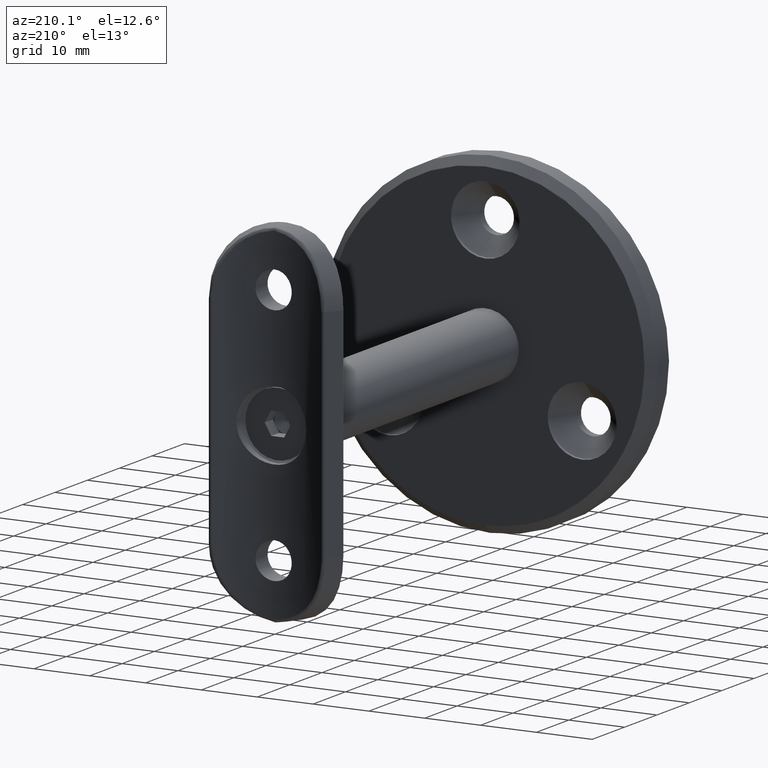
[diagram: clean part render]
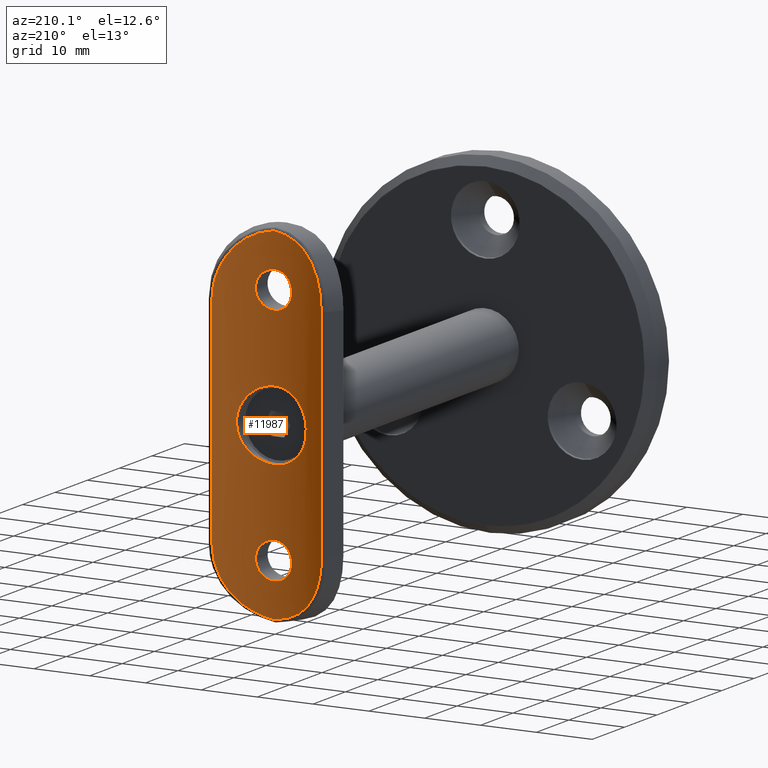
[diagram: same view with one face highlighted and labeled with its STEP entity id]
A machine part, auxiliary view. The second image highlights one B-rep face of the part: STEP entity #11987.
In plain terms, the highlighted cylindrical surface (partial cylindrical patch) has radius 21.2 mm, axis along (0, 0, 1).
Its self-contained STEP definition (entity closure, byte-faithful):
#31 = CARTESIAN_POINT ( 'NONE',  ( 3.145545920331509482, 0.2346159339094304741, -22.34487656152161605 ) ) ;
#66 = CARTESIAN_POINT ( 'NONE',  ( 5.614239911192782984, 0.7562560361792551866, -2.776362506403472707 ) ) ;
#86 = CARTESIAN_POINT ( 'NONE',  ( 3.145907283640576146, 0.2346707339384859758, -20.65680654937358440 ) ) ;
#96 = CARTESIAN_POINT ( 'NONE',  ( 2.819839704047508722, 0.1880380726274922532, 19.87035124118170870 ) ) ;
#165 = CARTESIAN_POINT ( 'NONE',  ( -1.987048177762577250, 0.09257353735406809170, 24.08067904902006262 ) ) ;
#200 = CARTESIAN_POINT ( 'NONE',  ( -6.039301808927667992, 0.8783182993483177325, -1.622293331917181503 ) ) ;
#232 = CARTESIAN_POINT ( 'NONE',  ( 0.2135048230366506095, 1.258701805919996194E-05, 18.25008210609304982 ) ) ;
#260 = CARTESIAN_POINT ( 'NONE',  ( -7.961314996402646393, 1.550569222153683979, -26.06667105966465670 ) ) ;
#261 = CARTESIAN_POINT ( 'NONE',  ( -5.418342615258408657, 0.7027876682133592512, 3.141403287028118552 ) ) ;
#263 = CARTESIAN_POINT ( 'NONE',  ( -9.498101785892211879, 2.246516363973416919, 22.26151695138473841 ) ) ;
#309 = CARTESIAN_POINT ( 'NONE',  ( -0.3496111230705142292, -2.191697751020502127E-16, -30.85369533552988131 ) ) ;
#310 = CARTESIAN_POINT ( 'NONE',  ( -6.168043762102301208, 0.9170762160689340803, 1.029291115725355032 ) ) ;
#311 = CARTESIAN_POINT ( 'NONE',  ( -7.961314996402649946, 1.550569222153686200, 26.06667105966465314 ) ) ;
#336 = CARTESIAN_POINT ( 'NONE',  ( -0.2150499108967895978, -2.731681254895124140E-17, 24.75000000000000000 ) ) ;
#340 = ORIENTED_EDGE ( 'NONE', *, *, #15476, .T. ) ;
#367 = CARTESIAN_POINT ( 'NONE',  ( 5.929858588863079483, 0.8455499187586685839, 2.017023791628234974 ) ) ;
#427 = CARTESIAN_POINT ( 'NONE',  ( -5.173748335101561402, 0.6336291749133582396, -29.01565426583593776 ) ) ;
#428 = CARTESIAN_POINT ( 'NONE',  ( 0.8222993865498399169, 0.01496025105131021035, 6.199095712120989532 ) ) ;
#622 = CARTESIAN_POINT ( 'NONE',  ( 9.786144100064895213, 2.393847186285935624, -19.50000000000000355 ) ) ;
#1017 = VERTEX_POINT ( 'NONE', #10471 ) ;
#1169 = CARTESIAN_POINT ( 'NONE',  ( 3.249878801187869204, 0.2505778649504845079, 21.71414448128088992 ) ) ;
#1193 = VERTEX_POINT ( 'NONE', #8116 ) ;
#1236 = CARTESIAN_POINT ( 'NONE',  ( 3.082978690918154907, 0.2252067195362402741, 22.55001038564953930 ) ) ;
#1241 = CARTESIAN_POINT ( 'NONE',  ( 4.588654109999668940, 0.4932363685647381812, -29.39409139998909026 ) ) ;
#1280 = CARTESIAN_POINT ( 'NONE',  ( 2.921457232206359222, 0.2020985129469241581, -20.06020391523707147 ) ) ;
#1286 = CARTESIAN_POINT ( 'NONE',  ( 1.048768862925172796, 0.02504141971366054265, 18.41651341461582447 ) ) ;
#1297 = ORIENTED_EDGE ( 'NONE', *, *, #5847, .T. ) ;
#1316 = CARTESIAN_POINT ( 'NONE',  ( 2.779446063824879687, 0.1795486602694901790, -5.612910073426257362 ) ) ;
#1317 = AXIS2_PLACEMENT_3D ( 'NONE', #13784, #4791, #14165 ) ;
#1336 = VERTEX_POINT ( 'NONE', #16317 ) ;
#1338 = CARTESIAN_POINT ( 'NONE',  ( 0.4264434180833558963, 0.003268988495222476757, -24.72886645516785720 ) ) ;
#1346 = CARTESIAN_POINT ( 'NONE',  ( 7.369745280326813308, 1.320855561925737609, 26.90753331144377825 ) ) ;
#1377 = CARTESIAN_POINT ( 'NONE',  ( 3.811200534816034491, 0.3447709507075331081, -4.957723033748282937 ) ) ;
#1397 = CARTESIAN_POINT ( 'NONE',  ( 3.229158249383773160, 0.2473313113571313226, -21.92522057988707829 ) ) ;
#1403 = CARTESIAN_POINT ( 'NONE',  ( 2.450216287825432993, 0.1415189953340932061, 19.35412267854471580 ) ) ;
#1434 = CARTESIAN_POINT ( 'NONE',  ( 5.421713914954439772, 0.7036460286707075795, -3.136250887450265257 ) ) ;
#1449 = CARTESIAN_POINT ( 'NONE',  ( 2.147498635732048911, 0.1084985908890578055, -19.05120459299063285 ) ) ;
#1455 = CARTESIAN_POINT ( 'NONE',  ( -1.047135578693866531, 0.02496962545759051980, 18.41603597569791617 ) ) ;
#1458 = CARTESIAN_POINT ( 'NONE',  ( 9.235871313527336923, 2.117188387548915252, -23.27048624469876259 ) ) ;
#1476 = CARTESIAN_POINT ( 'NONE',  ( -3.647338249130432253, 0.3154015837076459272, -5.079472761557564553 ) ) ;
#1489 = CARTESIAN_POINT ( 'NONE',  ( 3.082978690918154907, 0.2252067195362402741, -22.55001038564953930 ) ) ;
#1497 = CARTESIAN_POINT ( 'NONE',  ( -1.052750469737839367, 0.02525014802992522900, 24.58204548047347160 ) ) ;
#1543 = CARTESIAN_POINT ( 'NONE',  ( -2.586182703388970161, 0.1579996132313327140, -23.47972158452783376 ) ) ;
#1548 = CARTESIAN_POINT ( 'NONE',  ( -1.631629457461086341, 0.06212882879875767511, 24.31887391139545329 ) ) ;
#1583 = CARTESIAN_POINT ( 'NONE',  ( -5.079922859556514680, 0.6172907211265470373, 3.646638392818005059 ) ) ;
#1586 = CARTESIAN_POINT ( 'NONE',  ( -6.716344212987915618, 1.086700003243231460, 27.69146406474421696 ) ) ;
#1651 = CARTESIAN_POINT ( 'NONE',  ( -9.333094242841385224, 2.164721401289204206, -22.93476984843744759 ) ) ;
#1653 = CARTESIAN_POINT ( 'NONE',  ( 3.817888132544002389, 0.3438054985029085353, 4.965018884724328174 ) ) ;
#1672 = CARTESIAN_POINT ( 'NONE',  ( -2.821907254063746873, 0.1883137111381886775, -23.12618509924797294 ) ) ;
#1679 = CARTESIAN_POINT ( 'NONE',  ( -3.228460125727636854, 0.2472242654131561745, 21.07053707394223352 ) ) ;
#1703 = CARTESIAN_POINT ( 'NONE',  ( -9.498101785892202997, 2.246516363973413366, -22.26151695138474906 ) ) ;
#1705 = CARTESIAN_POINT ( 'NONE',  ( -5.919265578215368251, 0.8430304687442954359, -2.016754077386383237 ) ) ;
#2048 = EDGE_CURVE ( 'NONE', #4216, #1336, #9803, .T. ) ;
#2460 = CARTESIAN_POINT ( 'NONE',  ( 5.173748335101564955, 0.6336291749133607931, 29.01565426583592355 ) ) ;
#2489 = CARTESIAN_POINT ( 'NONE',  ( 9.786144100064895213, 2.393847186285949391, 19.50000000000000000 ) ) ;
#2517 = CARTESIAN_POINT ( 'NONE',  ( 3.145545920331509482, 0.2346159339094304741, 22.34487656152161605 ) ) ;
#2520 = CARTESIAN_POINT ( 'NONE',  ( 7.961314996402649946, 1.550569222153687310, -26.06667105966465314 ) ) ;
#2570 = CARTESIAN_POINT ( 'NONE',  ( -0.2109978030792270254, -1.251290075008408544E-05, -18.24991837737998068 ) ) ;
#2615 = CARTESIAN_POINT ( 'NONE',  ( 3.645808770947284394, 0.3151353198254496779, -5.080564660467373983 ) ) ;
#2639 = CARTESIAN_POINT ( 'NONE',  ( -3.250179184896289097, 0.2506244651691644787, -21.71207803581957307 ) ) ;
#2651 = CARTESIAN_POINT ( 'NONE',  ( 3.368459319491573734, 0.2601029505329920388, 30.02156205634348041 ) ) ;
#2655 = CARTESIAN_POINT ( 'NONE',  ( 5.173748335101573836, 0.6336291749133586837, -29.01565426583594132 ) ) ;
#2699 = CARTESIAN_POINT ( 'NONE',  ( 1.048768862925172796, 0.02504141971366054265, -18.41651341461582447 ) ) ;
#2707 = CARTESIAN_POINT ( 'NONE',  ( -2.818946742385630255, 0.1879160771953727604, 19.86874660788533831 ) ) ;
#2725 = EDGE_LOOP ( 'NONE', ( #6186 ) ) ;
#2738 = CARTESIAN_POINT ( 'NONE',  ( 1.424849074835204288, 0.04698282416929040750, -6.088850896372997923 ) ) ;
#2740 = CARTESIAN_POINT ( 'NONE',  ( -1.383814501144068343, 0.04241292802571689641, 30.65758117817205175 ) ) ;
#2758 = CARTESIAN_POINT ( 'NONE',  ( 1.983721702801612308, 0.09227673062904838408, -18.91695813430423101 ) ) ;
#2774 = CARTESIAN_POINT ( 'NONE',  ( 6.234549295242552525, 0.9299808624872809570, -28.16517789940062855 ) ) ;
#2804 = CARTESIAN_POINT ( 'NONE',  ( -2.781056929607645500, 0.1797819903685602960, -5.612029590905950549 ) ) ;
#2807 = CARTESIAN_POINT ( 'NONE',  ( -7.576938533877998871, 1.399175047004874051, 26.63232691431729293 ) ) ;
#2823 = CARTESIAN_POINT ( 'NONE',  ( -1.627814602934460231, 0.06183765153734042258, -18.67896950773687692 ) ) ;
#2865 = CARTESIAN_POINT ( 'NONE',  ( -0.6963605954796110442, 0.008645272120679704797, -30.79787574279941964 ) ) ;
#2866 = CARTESIAN_POINT ( 'NONE',  ( -3.138961909374041959, 0.2308669146253447824, 5.419888535949556108 ) ) ;
#2871 = CARTESIAN_POINT ( 'NONE',  ( -5.173748335101571172, 0.6336291749133606821, 29.01565426583593421 ) ) ;
#2912 = CARTESIAN_POINT ( 'NONE',  ( -2.019498987587631245, 0.09300041362134316147, 5.928790806727266549 ) ) ;
#2936 = CARTESIAN_POINT ( 'NONE',  ( -2.583132212986963161, 0.1576246710210893187, 19.51634772807298290 ) ) ;
#2964 = CARTESIAN_POINT ( 'NONE',  ( -9.566484978522471039, 2.281063973388749666, -21.92232553221905533 ) ) ;
#2966 = CARTESIAN_POINT ( 'NONE',  ( -1.628583440951780092, 0.05873803291983131086, 6.048261108094442839 ) ) ;
#3023 = CARTESIAN_POINT ( 'NONE',  ( -9.730737802063439190, 2.364718140661839829, -20.89720366981351418 ) ) ;
#3027 = CARTESIAN_POINT ( 'NONE',  ( 0.2073184500589395352, 2.579505847719572114E-05, 6.249912503154438248 ) ) ;
#3107 = CARTESIAN_POINT ( 'NONE',  ( -1.443554947874321259, 0.04829879282738373109, -24.41949259422040441 ) ) ;
#3127 = EDGE_CURVE ( 'NONE', #13432, #13432, #14274, .T. ) ;
#3145 = LINE ( 'NONE', #16788, #10884 ) ;
#3729 = CARTESIAN_POINT ( 'NONE',  ( 9.235871313527335147, 2.117188387548913919, 23.27048624469875548 ) ) ;
#3787 = CARTESIAN_POINT ( 'NONE',  ( 9.730737802063440967, 2.364718140661844714, 20.89720366981351418 ) ) ;
#3843 = CARTESIAN_POINT ( 'NONE',  ( 4.588654109999660058, 0.4932363685647397911, 29.39409139998909382 ) ) ;
#3897 = CARTESIAN_POINT ( 'NONE',  ( 1.441976982013438047, 0.04817999821228525353, -18.57963905767987711 ) ) ;
#3904 = CARTESIAN_POINT ( 'NONE',  ( 9.786144100064895213, 2.393847186285949391, 19.50000000000000000 ) ) ;
#3923 = B_SPLINE_CURVE_WITH_KNOTS ( 'NONE', 3,
 ( #5196, #15423, #14307, #10291, #16715, #10354, #2651, #3843, #2460, #11598, #11777, #1346, #13008, #7766, #7637, #7886, #3956, #3729, #6487, #10417, #14257, #3787, #10530, #3904 ),
 .UNSPECIFIED., .F., .F.,
 ( 4, 2, 2, 2, 2, 2, 2, 2, 2, 2, 2, 4 ),
 ( 0.000000000000000000, 0.001053485587485952736, 0.002106971174971905472, 0.004213942349943812678, 0.006320913524915718583, 0.008427884699887623621, 0.009481370287373573971, 0.01053485587485952259, 0.01264182704983141808, 0.01369531263731736670, 0.01474879822480331358, 0.01685576939977520908 ),
 .UNSPECIFIED. ) ;
#3930 = CARTESIAN_POINT ( 'NONE',  ( 4.126940293863242459, 0.4049478955708706862, -4.698151871409463887 ) ) ;
#3949 = CARTESIAN_POINT ( 'NONE',  ( 0.8422358293998256640, 0.01571576921726273307, -24.64612005203395384 ) ) ;
#3956 = CARTESIAN_POINT ( 'NONE',  ( 8.904028815678783459, 1.958941227809775532, 24.25532854542014150 ) ) ;
#3992 = CARTESIAN_POINT ( 'NONE',  ( 3.252606517456513302E-16, -3.858705648602913067E-18, -6.250000000000000000 ) ) ;
#4016 = CARTESIAN_POINT ( 'NONE',  ( -1.355252715606880543E-17, 6.470390569303776767E-19, 24.75000000000000000 ) ) ;
#4034 = ORIENTED_EDGE ( 'NONE', *, *, #4093, .T. ) ;
#4050 = CARTESIAN_POINT ( 'NONE',  ( -3.796375941170285717E-15, 0.000000000000000000, 30.89612722721090776 ) ) ;
#4068 = CARTESIAN_POINT ( 'NONE',  ( -0.8423241288772215229, 0.01569777600590175834, -18.35375505035547050 ) ) ;
#4093 = EDGE_CURVE ( 'NONE', #14385, #4216, #12031, .T. ) ;
#4104 = CARTESIAN_POINT ( 'NONE',  ( -4.700046672115660407, 0.5271378593229989473, 4.124758911762493874 ) ) ;
#4120 = CARTESIAN_POINT ( 'NONE',  ( -2.445886756578096399, 0.1410260412209410064, -19.34941560476179845 ) ) ;
#4216 = VERTEX_POINT ( 'NONE', #15662 ) ;
#4219 = CARTESIAN_POINT ( 'NONE',  ( -0.4153841167000001389, -5.590417451878381005E-17, -6.250000000000000000 ) ) ;
#4247 = CARTESIAN_POINT ( 'NONE',  ( 0.4291155959866740921, 0.003316562383963741339, 18.27144141373703690 ) ) ;
#4281 = CARTESIAN_POINT ( 'NONE',  ( 0.4121785730507745993, 0.003014500416007555913, 6.239797492953990776 ) ) ;
#4340 = CARTESIAN_POINT ( 'NONE',  ( -3.812893025349349152, 0.3450818636665604067, -4.956412987034431339 ) ) ;
#4357 = CARTESIAN_POINT ( 'NONE',  ( -3.084331617472057641, 0.2254044745776028202, -22.54627208264579963 ) ) ;
#4410 = CARTESIAN_POINT ( 'NONE',  ( -0.4275380518344815695, 0.003270632450816766176, -24.72886359071462792 ) ) ;
#4652 = FACE_BOUND ( 'NONE', #8873, .T. ) ;
#4739 = DIRECTION ( 'NONE',  ( -0.000000000000000000, -0.000000000000000000, 1.000000000000000000 ) ) ;
#4791 = DIRECTION ( 'NONE',  ( 0.000000000000000000, 0.000000000000000000, -1.000000000000000000 ) ) ;
#5025 = CARTESIAN_POINT ( 'NONE',  ( 1.983721702801612308, 0.09227673062904838408, 18.91695813430423101 ) ) ;
#5144 = CARTESIAN_POINT ( 'NONE',  ( 3.084468863350044554, 0.2254241747152201381, 20.45406646657944449 ) ) ;
#5148 = CARTESIAN_POINT ( 'NONE',  ( 6.716344212987907625, 1.086700003243234125, -27.69146406474421340 ) ) ;
#5187 = CARTESIAN_POINT ( 'NONE',  ( -2.918967894088988491, 0.2017509110877075684, -20.05515662026936496 ) ) ;
#5196 = CARTESIAN_POINT ( 'NONE',  ( -3.796375941170285717E-15, 0.000000000000000000, 30.89612722721090776 ) ) ;
#5236 = ORIENTED_EDGE ( 'NONE', *, *, #8417, .T. ) ;
#5253 = CARTESIAN_POINT ( 'NONE',  ( 2.448021508383576794, 0.1412761474275376905, -23.64813597836817749 ) ) ;
#5263 = CARTESIAN_POINT ( 'NONE',  ( 0.8422358293998256640, 0.01571576921726273307, 24.64612005203395384 ) ) ;
#5268 = CARTESIAN_POINT ( 'NONE',  ( 0.3496111230705337136, 2.024408743937770168E-16, -30.85369533552986354 ) ) ;
#5293 = CARTESIAN_POINT ( 'NONE',  ( 6.037489438090903882, 0.8777801580022847050, -1.628895278877126485 ) ) ;
#5349 = CARTESIAN_POINT ( 'NONE',  ( 6.249725049153894929, 0.9421388865473353524, -0.4143435962915436033 ) ) ;
#5397 = CARTESIAN_POINT ( 'NONE',  ( -2.728825075595699090, 0.1656264627807208789, -30.27558004452008333 ) ) ;
#5398 = CARTESIAN_POINT ( 'NONE',  ( -1.628331638382394475, 0.05878972328452738982, -6.048074268472876547 ) ) ;
#5402 = CARTESIAN_POINT ( 'NONE',  ( -0.6963605954796248110, 0.008645272120680560016, 30.79787574279942319 ) ) ;
#5427 = CARTESIAN_POINT ( 'NONE',  ( -3.145373074388929435, 0.2345905360707609966, 20.65500212356448628 ) ) ;
#5456 = CARTESIAN_POINT ( 'NONE',  ( 1.064693553844775546E-14, 0.000000000000000000, -30.89612722721090776 ) ) ;
#5458 = CARTESIAN_POINT ( 'NONE',  ( 5.693306450056792478, 0.7786147160836194292, 2.586704202400924579 ) ) ;
#5463 = CARTESIAN_POINT ( 'NONE',  ( -9.786144100064898765, 2.393847186285949835, 20.20379068883977780 ) ) ;
#5495 = CARTESIAN_POINT ( 'NONE',  ( -0.4275380518344815695, 0.003270632450816766176, 24.72886359071462792 ) ) ;
#5523 = CARTESIAN_POINT ( 'NONE',  ( 5.411934874550039076, 0.7021725669869868236, 3.132905830933767177 ) ) ;
#5540 = CARTESIAN_POINT ( 'NONE',  ( -0.2150499108967895978, -2.731681254895124140E-17, -24.75000000000000000 ) ) ;
#5570 = CARTESIAN_POINT ( 'NONE',  ( 5.604762028757866332, 0.7540563641355548796, 2.773225672905788031 ) ) ;
#5589 = CARTESIAN_POINT ( 'NONE',  ( -1.631629457461086341, 0.06212882879875767511, -24.31887391139545329 ) ) ;
#5628 = CARTESIAN_POINT ( 'NONE',  ( 3.142721505544152638, 0.2314420997654646206, 5.417654829986845222 ) ) ;
#5650 = CARTESIAN_POINT ( 'NONE',  ( -1.987048177762577250, 0.09257353735406809170, -24.08067904902006262 ) ) ;
#5847 = EDGE_CURVE ( 'NONE', #15340, #13370, #3145, .T. ) ;
#5971 = CARTESIAN_POINT ( 'NONE',  ( -9.786144100064898765, 2.393847186285935624, 31.50000000000000000 ) ) ;
#6008 = DIRECTION ( 'NONE',  ( 0.000000000000000000, 0.000000000000000000, -1.000000000000000000 ) ) ;
#6186 = ORIENTED_EDGE ( 'NONE', *, *, #7535, .F. ) ;
#6281 = VECTOR ( 'NONE', #4739, 1000.000000000000000 ) ;
#6317 = CARTESIAN_POINT ( 'NONE',  ( 1.632114013627158577, 0.06218229672154847870, 18.68158538880010866 ) ) ;
#6398 = CARTESIAN_POINT ( 'NONE',  ( 1.623571473302697576, 0.06133674405567200033, -6.038947878889749710 ) ) ;
#6418 = CARTESIAN_POINT ( 'NONE',  ( 2.820025938915971420, 0.1880558028966971829, -23.12960000525240645 ) ) ;
#6428 = CARTESIAN_POINT ( 'NONE',  ( 2.921457232206359222, 0.2020985129469241581, 20.06020391523707147 ) ) ;
#6478 = CARTESIAN_POINT ( 'NONE',  ( -3.249818524630297301, 0.2505685139125645722, -21.28246521156387061 ) ) ;
#6487 = CARTESIAN_POINT ( 'NONE',  ( 9.333094242841394106, 2.164721401289207758, 22.93476984843744404 ) ) ;
#6530 = CARTESIAN_POINT ( 'NONE',  ( 2.920790955711715764, 0.2020074540475240432, -22.94092318034653744 ) ) ;
#6535 = CARTESIAN_POINT ( 'NONE',  ( 3.229158249383773160, 0.2473313113571313226, 21.92522057988707829 ) ) ;
#6540 = CARTESIAN_POINT ( 'NONE',  ( 7.369745280326811532, 1.320855561925740718, -26.90753331144377469 ) ) ;
#6581 = CARTESIAN_POINT ( 'NONE',  ( -3.145373074388929435, 0.2345905360707609966, -20.65500212356448628 ) ) ;
#6591 = CARTESIAN_POINT ( 'NONE',  ( -2.445886756578096399, 0.1410260412209410064, 19.34941560476179845 ) ) ;
#6595 = CARTESIAN_POINT ( 'NONE',  ( 8.904028815678778130, 1.958941227809774643, -24.25532854542014150 ) ) ;
#6630 = CARTESIAN_POINT ( 'NONE',  ( -6.198521291053712190, 0.9264015604088318145, 0.8266439793733078023 ) ) ;
#6632 = CARTESIAN_POINT ( 'NONE',  ( -1.725848776065748380, 0.06769569826162523396, 30.57265922836107208 ) ) ;
#6693 = CARTESIAN_POINT ( 'NONE',  ( 3.252606517456513302E-16, -3.858705648602913067E-18, -6.250000000000000000 ) ) ;
#6723 = CARTESIAN_POINT ( 'NONE',  ( -2.821907254063746873, 0.1883137111381886775, 23.12618509924797294 ) ) ;
#6752 = CARTESIAN_POINT ( 'NONE',  ( -7.369745280326807979, 1.320855561925737831, -26.90753331144376759 ) ) ;
#6753 = CARTESIAN_POINT ( 'NONE',  ( 4.130900364371705713, 0.4042628310373265754, 4.707934048289297735 ) ) ;
#6775 = CARTESIAN_POINT ( 'NONE',  ( -2.150385480687886375, 0.1088062235640963188, 23.94603853267264881 ) ) ;
#6796 = CARTESIAN_POINT ( 'NONE',  ( -8.138925242327928800, 1.623748329729958195, -25.77605957762513356 ) ) ;
#6797 = CARTESIAN_POINT ( 'NONE',  ( 2.023361902274226409, 0.09337216526201196076, 5.927473218269418531 ) ) ;
#6860 = CARTESIAN_POINT ( 'NONE',  ( 1.064693553844775546E-14, 0.000000000000000000, -30.89612722721090776 ) ) ;
#6862 = CARTESIAN_POINT ( 'NONE',  ( -6.239524233404180720, 0.9389833121286422779, 0.4163457758189879621 ) ) ;
#6925 = CARTESIAN_POINT ( 'NONE',  ( -9.786144100064898765, 2.393847186285949391, -19.50000000000000000 ) ) ;
#6944 = CARTESIAN_POINT ( 'NONE',  ( -2.150385480687886375, 0.1088062235640963188, -23.94603853267264881 ) ) ;
#7084 = B_SPLINE_CURVE_WITH_KNOTS ( 'NONE', 3,
 ( #13115, #11781, #12948, #16837, #8002, #10534, #1458, #6595, #10474, #10591, #2520, #7890, #6540, #5148, #2774, #2655, #1241, #9159, #11714, #10359, #13013, #11664, #5268, #9218 ),
 .UNSPECIFIED., .F., .F.,
 ( 4, 2, 2, 2, 2, 2, 2, 2, 2, 2, 2, 4 ),
 ( 0.000000000000000000, 0.002082930985801093298, 0.003124396478701641031, 0.004165861971602188331, 0.006248792957403284665, 0.007290258450303832398, 0.008331723943204380131, 0.01041465492900546692, 0.01249758591480655025, 0.01458051690060763531, 0.01562198239350817870, 0.01666344788640872210 ),
 .UNSPECIFIED. ) ;
#7278 = ORIENTED_EDGE ( 'NONE', *, *, #2048, .T. ) ;
#7511 = EDGE_CURVE ( 'NONE', #1017, #15340, #3923, .T. ) ;
#7535 = EDGE_CURVE ( 'NONE', #14024, #14024, #13321, .T. ) ;
#7637 = CARTESIAN_POINT ( 'NONE',  ( 8.138925242327928800, 1.623748329729961526, 25.77605957762512645 ) ) ;
#7759 = CARTESIAN_POINT ( 'NONE',  ( 3.084468863350044554, 0.2254241747152201381, -20.45406646657944449 ) ) ;
#7766 = CARTESIAN_POINT ( 'NONE',  ( 7.961314996402642841, 1.550569222153686200, 26.06667105966464959 ) ) ;
#7810 = CARTESIAN_POINT ( 'NONE',  ( 0.2150499108967887929, 2.861089066281190065E-17, -24.75000000000000355 ) ) ;
#7820 = CARTESIAN_POINT ( 'NONE',  ( 1.628785365800687224, 0.06191954441467142911, 24.32039406380675928 ) ) ;
#7875 = CARTESIAN_POINT ( 'NONE',  ( 3.228949414987504429, 0.2472997075057148109, -21.07386210225567780 ) ) ;
#7886 = CARTESIAN_POINT ( 'NONE',  ( 8.630651940699086921, 1.833049251099972743, 24.88160642046342019 ) ) ;
#7890 = CARTESIAN_POINT ( 'NONE',  ( 7.576938533877997983, 1.399175047004875161, -26.63232691431728938 ) ) ;
#7917 = CARTESIAN_POINT ( 'NONE',  ( 6.088342284034527374, 0.8930094056061508301, -1.427235600438272245 ) ) ;
#7975 = CARTESIAN_POINT ( 'NONE',  ( -5.615371060258129710, 0.7565649993771517146, -2.774231810149235589 ) ) ;
#7991 = CARTESIAN_POINT ( 'NONE',  ( 1.442239263721961873, 0.04819686276429754196, -24.42024035302756957 ) ) ;
#7998 = CARTESIAN_POINT ( 'NONE',  ( -2.918967894088988491, 0.2017509110877075684, 20.05515662026936496 ) ) ;
#8002 = CARTESIAN_POINT ( 'NONE',  ( 9.498101785892204774, 2.246516363973415586, -22.26151695138473841 ) ) ;
#8021 = CARTESIAN_POINT ( 'NONE',  ( -4.128869264178624654, 0.4038601850098663126, 4.709693602582373018 ) ) ;
#8047 = CARTESIAN_POINT ( 'NONE',  ( -3.250179184896289097, 0.2506244651691644787, 21.71207803581957307 ) ) ;
#8078 = CARTESIAN_POINT ( 'NONE',  ( -3.815599846328837863, 0.3433746249938488537, 4.966837164968657348 ) ) ;
#8080 = CARTESIAN_POINT ( 'NONE',  ( -9.333094242841397659, 2.164721401289208647, 22.93476984843743693 ) ) ;
#8106 = CARTESIAN_POINT ( 'NONE',  ( -2.146023883358508133, 0.1083588188449987194, 19.05011086799810371 ) ) ;
#8116 = CARTESIAN_POINT ( 'NONE',  ( 0.000000000000000000, 0.000000000000000000, -6.250000000000000000 ) ) ;
#8135 = CARTESIAN_POINT ( 'NONE',  ( -8.904028815678779907, 1.958941227809772867, -24.25532854542014505 ) ) ;
#8137 = CARTESIAN_POINT ( 'NONE',  ( -4.966423312642175958, 0.5885908633273573276, -3.816548163265734317 ) ) ;
#8197 = CARTESIAN_POINT ( 'NONE',  ( -4.708117847964831348, 0.5273280253430013831, -4.130414004293347041 ) ) ;
#8249 = CARTESIAN_POINT ( 'NONE',  ( -7.576938533877994431, 1.399175047004871386, -26.63232691431729293 ) ) ;
#8417 = EDGE_CURVE ( 'NONE', #1193, #1193, #9969, .T. ) ;
#8873 = EDGE_LOOP ( 'NONE', ( #12192 ) ) ;
#9030 = CARTESIAN_POINT ( 'NONE',  ( 2.920790955711715764, 0.2020074540475240432, 22.94092318034653744 ) ) ;
#9079 = CARTESIAN_POINT ( 'NONE',  ( 1.048813183214363676, 0.02504259846289262972, -24.58347996912378974 ) ) ;
#9088 = CARTESIAN_POINT ( 'NONE',  ( 1.441976982013438047, 0.04817999821228525353, 18.57963905767987711 ) ) ;
#9122 = CARTESIAN_POINT ( 'NONE',  ( 2.017426682319550579, 0.09528350916321162711, -5.919025713268562860 ) ) ;
#9154 = CARTESIAN_POINT ( 'NONE',  ( 1.442239263721961873, 0.04819686276429754196, 24.42024035302756957 ) ) ;
#9159 = CARTESIAN_POINT ( 'NONE',  ( 3.368459319491586168, 0.2601029505329905400, -30.02156205634348041 ) ) ;
#9186 = CARTESIAN_POINT ( 'NONE',  ( 5.848568015681263610, 0.8225408496146877635, -2.213164431938652310 ) ) ;
#9207 = CARTESIAN_POINT ( 'NONE',  ( 1.632114013627158577, 0.06218229672154847870, -18.68158538880010866 ) ) ;
#9212 = CARTESIAN_POINT ( 'NONE',  ( 2.582435166560725914, 0.1575340359345586694, 23.48473451216730368 ) ) ;
#9218 = CARTESIAN_POINT ( 'NONE',  ( 1.064693553844775546E-14, 0.000000000000000000, -30.89612722721090776 ) ) ;
#9242 = CARTESIAN_POINT ( 'NONE',  ( 6.209466178652506940, 0.9295869590769786361, -0.8213907006140717115 ) ) ;
#9256 = CARTESIAN_POINT ( 'NONE',  ( 2.819839704047508722, 0.1880380726274922532, -19.87035124118170870 ) ) ;
#9263 = CARTESIAN_POINT ( 'NONE',  ( -3.082691481000266798, 0.2251614642759025564, 20.44882960865418653 ) ) ;
#9292 = CARTESIAN_POINT ( 'NONE',  ( -4.128233867710012106, 0.4052062085381769041, -4.697006286380012163 ) ) ;
#9295 = CARTESIAN_POINT ( 'NONE',  ( -8.630651940699086921, 1.833049251099971411, 24.88160642046341664 ) ) ;
#9311 = CARTESIAN_POINT ( 'NONE',  ( 0.4291155959866740921, 0.003316562383963741339, -18.27144141373703690 ) ) ;
#9319 = CARTESIAN_POINT ( 'NONE',  ( -3.146879315023289880, 0.2348172704072436223, 22.33941132614858560 ) ) ;
#9352 = CARTESIAN_POINT ( 'NONE',  ( -5.850004586780881866, 0.8229527893045350817, -2.209413927911600517 ) ) ;
#9356 = CARTESIAN_POINT ( 'NONE',  ( -6.234549295242551636, 0.9299808624872829554, 28.16517789940063565 ) ) ;
#9373 = CARTESIAN_POINT ( 'NONE',  ( -1.052750469737839367, 0.02525014802992522900, -24.58204548047347160 ) ) ;
#9382 = CARTESIAN_POINT ( 'NONE',  ( -2.449360428614453244, 0.1414329518492761784, 23.64660096655394028 ) ) ;
#9413 = CARTESIAN_POINT ( 'NONE',  ( -6.249934268010309601, 0.9422034354612639495, 0.2079996149894276780 ) ) ;
#9415 = CARTESIAN_POINT ( 'NONE',  ( -8.904028815678783459, 1.958941227809773755, 24.25532854542013439 ) ) ;
#9442 = CARTESIAN_POINT ( 'NONE',  ( -3.084331617472057641, 0.2254044745776028202, 22.54627208264579963 ) ) ;
#9465 = CARTESIAN_POINT ( 'NONE',  ( -9.235871313527335147, 2.117188387548912143, -23.27048624469875904 ) ) ;
#9467 = CARTESIAN_POINT ( 'NONE',  ( -2.773078085023259920, 0.1787287340984061723, 5.615957133487123443 ) ) ;
#9494 = CARTESIAN_POINT ( 'NONE',  ( -1.438401774077970652, 0.04794561704963987148, 18.57795835764009240 ) ) ;
#9520 = CARTESIAN_POINT ( 'NONE',  ( -6.234549295242542755, 0.9299808624872804019, -28.16517789940062855 ) ) ;
#9523 = CARTESIAN_POINT ( 'NONE',  ( -6.209910792216525977, 0.9297259159817782281, -0.8173020832162402050 ) ) ;
#9573 = CYLINDRICAL_SURFACE ( 'NONE', #1317, 21.20000000000000284 ) ;
#9587 = ORIENTED_EDGE ( 'NONE', *, *, #7511, .T. ) ;
#9803 = LINE ( 'NONE', #5971, #6281 ) ;
#9969 = B_SPLINE_CURVE_WITH_KNOTS ( 'NONE', 3,
 ( #3992, #14282, #10387, #2738, #6398, #9122, #15505, #1316, #10448, #2615, #1377, #3930, #11745, #13041, #15626, #1434, #66, #9186, #10501, #5293, #7917, #9242, #5349, #10562, #11868, #13146, #367, #5458, #5570, #5523, #14558, #12092, #13208, #13449, #10672, #6753, #1653, #5628, #10785, #6797, #15802, #12038, #428, #4281, #3027, #13385, #15862, #2966, #2912, #9467, #2866, #8078, #8021, #10845, #4104, #15912, #1583, #261, #11975, #14612, #14671, #310, #6630, #6862, #9413, #15735, #9523, #10725, #200, #1705, #9352, #7975, #15958, #8137, #8197, #12147, #9292, #4340, #1476, #10622, #2804, #11918, #5398, #14510, #4219, #6693 ),
 .UNSPECIFIED., .T., .F.,
 ( 4, 2, 2, 2, 2, 2, 2, 2, 2, 2, 2, 2, 2, 2, 2, 2, 2, 2, 2, 2, 2, 2, 2, 2, 2, 2, 2, 2, 2, 2, 2, 2, 2, 2, 2, 2, 2, 2, 2, 2, 2, 2, 4 ),
 ( 0.000000000000000000, 0.001227966697524688873, 0.001841950046287032768, 0.002455933395049376879, 0.003683900092574065536, 0.004297883441336409864, 0.004911866790098755493, 0.006139833487623446752, 0.007367800185148136276, 0.007981783533910482772, 0.008595766882672830136, 0.009823733580197521395, 0.01105170027772221265, 0.01227966697524690391, 0.01289365032400925128, 0.01350763367277159691, 0.01412161702153394427, 0.01473560037029628816, 0.01596356706782097942, 0.01719153376534567415, 0.01841950046287036541, 0.01903348381163271277, 0.01964746716039506014, 0.02087543385791975487, 0.02210340055544444612, 0.02333136725296914085, 0.02455933395049383211, 0.02517331729925617947, 0.02578730064801853031, 0.02701526734554322851, 0.02824323404306792670, 0.02885721739183027407, 0.02947120074059262143, 0.03069916743811731963, 0.03131315078687967046, 0.03192713413564201436, 0.03315510083316670908, 0.03438306753069140381, 0.03499705087945376158, 0.03561103422821610548, 0.03683900092574080021, 0.03806696762326549494, 0.03929493432079018966 ),
 .UNSPECIFIED. ) ;
#10291 = CARTESIAN_POINT ( 'NONE',  ( 1.383814501144060349, 0.04241292802571658416, 30.65758117817204109 ) ) ;
#10354 = CARTESIAN_POINT ( 'NONE',  ( 2.728825075595706195, 0.1656264627807221834, 30.27558004452008333 ) ) ;
#10359 = CARTESIAN_POINT ( 'NONE',  ( 1.725848776065753265, 0.06769569826162598336, -30.57265922836107208 ) ) ;
#10370 = EDGE_CURVE ( 'NONE', #13370, #14385, #7084, .T. ) ;
#10387 = CARTESIAN_POINT ( 'NONE',  ( 0.8233808030139160294, 0.01218826397076288974, -6.209005117610400859 ) ) ;
#10407 = CARTESIAN_POINT ( 'NONE',  ( -2.583132212986963161, 0.1576246710210893187, -19.51634772807298290 ) ) ;
#10417 = CARTESIAN_POINT ( 'NONE',  ( 9.498101785892210103, 2.246516363973416031, 22.26151695138474196 ) ) ;
#10448 = CARTESIAN_POINT ( 'NONE',  ( 3.137565829016223606, 0.2306495598298696215, -5.420739444265335827 ) ) ;
#10467 = CARTESIAN_POINT ( 'NONE',  ( 1.628785365800687224, 0.06191954441467142911, -24.32039406380675928 ) ) ;
#10471 = CARTESIAN_POINT ( 'NONE',  ( -3.796375941170285717E-15, 0.000000000000000000, 30.89612722721090776 ) ) ;
#10474 = CARTESIAN_POINT ( 'NONE',  ( 8.630651940699086921, 1.833049251099971633, -24.88160642046341664 ) ) ;
#10501 = CARTESIAN_POINT ( 'NONE',  ( 5.917687611305378681, 0.8425720839653284555, -2.021274815459364937 ) ) ;
#10530 = CARTESIAN_POINT ( 'NONE',  ( 9.786144100064895213, 2.393847186285948947, 20.20379068883977425 ) ) ;
#10534 = CARTESIAN_POINT ( 'NONE',  ( 9.333094242841390553, 2.164721401289207758, -22.93476984843744759 ) ) ;
#10562 = CARTESIAN_POINT ( 'NONE',  ( 6.250272170820364792, 0.9423076863965647032, 0.4060068921556670984 ) ) ;
#10563 = CARTESIAN_POINT ( 'NONE',  ( -8.138925242327930576, 1.623748329729961304, 25.77605957762513000 ) ) ;
#10578 = CARTESIAN_POINT ( 'NONE',  ( 2.450216287825432993, 0.1415189953340932061, -19.35412267854471580 ) ) ;
#10588 = CARTESIAN_POINT ( 'NONE',  ( -3.229269677274341444, 0.2473497222911609228, 21.92341250480404824 ) ) ;
#10591 = CARTESIAN_POINT ( 'NONE',  ( 8.138925242327928800, 1.623748329729961082, -25.77605957762513000 ) ) ;
#10622 = CARTESIAN_POINT ( 'NONE',  ( -3.138816783762651053, 0.2308336252617647910, -5.420037689340371223 ) ) ;
#10642 = CARTESIAN_POINT ( 'NONE',  ( -1.438401774077970652, 0.04794561704963987148, -18.57795835764009240 ) ) ;
#10649 = CARTESIAN_POINT ( 'NONE',  ( -0.2109978030792270254, -1.251290075008408544E-05, 18.24991837737998068 ) ) ;
#10672 = CARTESIAN_POINT ( 'NONE',  ( 4.563671845579695407, 0.4965062165561331398, 4.275163095335098973 ) ) ;
#10675 = CARTESIAN_POINT ( 'NONE',  ( -7.369745280326814196, 1.320855561925736943, 26.90753331144376403 ) ) ;
#10694 = CARTESIAN_POINT ( 'NONE',  ( -0.4221747768704013914, 0.003162049178549894164, 18.27042794181227237 ) ) ;
#10723 = CARTESIAN_POINT ( 'NONE',  ( -6.716344212987908513, 1.086700003243231238, -27.69146406474422406 ) ) ;
#10725 = CARTESIAN_POINT ( 'NONE',  ( -6.089742371759959028, 0.8934299125204623326, -1.421146203323441437 ) ) ;
#10728 = CARTESIAN_POINT ( 'NONE',  ( -2.728825075595712857, 0.1656264627807224055, 30.27558004452008333 ) ) ;
#10758 = CARTESIAN_POINT ( 'NONE',  ( -1.982543221950620493, 0.09215287565809694714, 18.91591103231668569 ) ) ;
#10785 = CARTESIAN_POINT ( 'NONE',  ( 2.776727184556485817, 0.1792122392081558213, 5.614153389730371480 ) ) ;
#10845 = CARTESIAN_POINT ( 'NONE',  ( -4.561576321407832424, 0.4960445900959338794, 4.277392929307812786 ) ) ;
#10884 = VECTOR ( 'NONE', #6008, 1000.000000000000000 ) ;
#10909 = CARTESIAN_POINT ( 'NONE',  ( -2.449360428614453244, 0.1414329518492761784, -23.64660096655394028 ) ) ;
#10929 = FACE_BOUND ( 'NONE', #2725, .T. ) ;
#11538 = CARTESIAN_POINT ( 'NONE',  ( 1.048813183214363676, 0.02504259846289262972, 24.58347996912378974 ) ) ;
#11598 = CARTESIAN_POINT ( 'NONE',  ( 6.234549295242548972, 0.9299808624872836216, 28.16517789940063210 ) ) ;
#11661 = CARTESIAN_POINT ( 'NONE',  ( 3.228949414987504429, 0.2472997075057148109, 21.07386210225567780 ) ) ;
#11664 = CARTESIAN_POINT ( 'NONE',  ( 0.6963605954796308062, 0.008645272120681474215, -30.79787574279942675 ) ) ;
#11701 = CARTESIAN_POINT ( 'NONE',  ( -3.082691481000266798, 0.2251614642759025564, -20.44882960865418653 ) ) ;
#11710 = CARTESIAN_POINT ( 'NONE',  ( 0.4264434180833558963, 0.003268988495222476757, 24.72886645516785720 ) ) ;
#11714 = CARTESIAN_POINT ( 'NONE',  ( 2.728825075595715965, 0.1656264627807234047, -30.27558004452007268 ) ) ;
#11745 = CARTESIAN_POINT ( 'NONE',  ( 4.277366446684279566, 0.4354730194048690439, -4.561543828076405127 ) ) ;
#11767 = CARTESIAN_POINT ( 'NONE',  ( -3.229269677274341444, 0.2473497222911609228, -21.92341250480404824 ) ) ;
#11777 = CARTESIAN_POINT ( 'NONE',  ( 6.716344212987911177, 1.086700003243231238, 27.69146406474422051 ) ) ;
#11781 = CARTESIAN_POINT ( 'NONE',  ( 9.786144100064898765, 2.393847186285935624, -20.20379068883977780 ) ) ;
#11830 = CARTESIAN_POINT ( 'NONE',  ( -1.982543221950620493, 0.09215287565809694714, -18.91591103231668569 ) ) ;
#11838 = CARTESIAN_POINT ( 'NONE',  ( -2.586182703388970161, 0.1579996132313327140, 23.47972158452783376 ) ) ;
#11868 = CARTESIAN_POINT ( 'NONE',  ( 6.209136940720305198, 0.9294881926627945878, 0.8227772426481447798 ) ) ;
#11870 = CARTESIAN_POINT ( 'NONE',  ( -9.235871313527338700, 2.117188387548915696, 23.27048624469875548 ) ) ;
#11884 = CARTESIAN_POINT ( 'NONE',  ( 0.8461986512866611632, 0.01586733444615116839, -18.35489609357465568 ) ) ;
#11891 = CARTESIAN_POINT ( 'NONE',  ( 0.8461986512866611632, 0.01586733444615116839, 18.35489609357465568 ) ) ;
#11918 = CARTESIAN_POINT ( 'NONE',  ( -2.027418235541532443, 0.09375878759208626512, -5.926105725779482469 ) ) ;
#11933 = CARTESIAN_POINT ( 'NONE',  ( -2.146023883358508133, 0.1083588188449987194, -19.05011086799810371 ) ) ;
#11974 = CARTESIAN_POINT ( 'NONE',  ( -8.630651940699088698, 1.833049251099967414, -24.88160642046342019 ) ) ;
#11975 = CARTESIAN_POINT ( 'NONE',  ( -5.611457660758768284, 0.7554722972468473907, 2.782874700547276703 ) ) ;
#11977 = CARTESIAN_POINT ( 'NONE',  ( -4.588654109999667163, 0.4932363685647399021, 29.39409139998909026 ) ) ;
#11987 = ADVANCED_FACE ( 'NONE', ( #12583, #15182, #10929, #4652 ), #9573, .F. ) ;
#12005 = CARTESIAN_POINT ( 'NONE',  ( -1.627814602934460231, 0.06183765153734042258, 18.67896950773687692 ) ) ;
#12031 = B_SPLINE_CURVE_WITH_KNOTS ( 'NONE', 3,
 ( #6860, #309, #2865, #15800, #13207, #5397, #15910, #12089, #427, #9520, #10723, #6752, #8249, #260, #6796, #11974, #8135, #9465, #1651, #1703, #2964, #3023, #12145, #6925 ),
 .UNSPECIFIED., .F., .F.,
 ( 4, 2, 2, 2, 2, 2, 2, 2, 2, 2, 2, 4 ),
 ( 0.000000000000000000, 0.001053485587485952953, 0.002106971174971905905, 0.004213942349943809208, 0.006320913524915715113, 0.008427884699887621886, 0.009481370287373570502, 0.01053485587485951912, 0.01264182704983141982, 0.01369531263731736843, 0.01474879822480331705, 0.01685576939977521602 ),
 .UNSPECIFIED. ) ;
#12038 = CARTESIAN_POINT ( 'NONE',  ( 1.028432529712553389, 0.02399588449465835799, 6.168237391625246424 ) ) ;
#12089 = CARTESIAN_POINT ( 'NONE',  ( -4.588654109999660058, 0.4932363685647338514, -29.39409139998909737 ) ) ;
#12092 = CARTESIAN_POINT ( 'NONE',  ( 5.081585807027368062, 0.6177010395854700686, 3.644331722875381097 ) ) ;
#12145 = CARTESIAN_POINT ( 'NONE',  ( -9.786144100064893436, 2.393847186285948947, -20.20379068883976004 ) ) ;
#12147 = CARTESIAN_POINT ( 'NONE',  ( -4.278556194359627973, 0.4357183617580773216, -4.560428189436136925 ) ) ;
#12192 = ORIENTED_EDGE ( 'NONE', *, *, #3127, .T. ) ;
#12249 = EDGE_LOOP ( 'NONE', ( #9587, #1297, #13630, #4034, #7278, #340 ) ) ;
#12583 = FACE_OUTER_BOUND ( 'NONE', #12249, .T. ) ;
#12838 = CARTESIAN_POINT ( 'NONE',  ( 2.147498635732048911, 0.1084985908890578055, 19.05120459299063285 ) ) ;
#12944 = CARTESIAN_POINT ( 'NONE',  ( 3.145907283640576146, 0.2346707339384859758, 20.65680654937358440 ) ) ;
#12948 = CARTESIAN_POINT ( 'NONE',  ( 9.730737802063439190, 2.364718140661838497, -20.89720366981351418 ) ) ;
#12999 = CARTESIAN_POINT ( 'NONE',  ( -3.228460125727636854, 0.2472242654131561745, -21.07053707394223352 ) ) ;
#13008 = CARTESIAN_POINT ( 'NONE',  ( 7.576938533877995319, 1.399175047004874495, 26.63232691431729293 ) ) ;
#13013 = CARTESIAN_POINT ( 'NONE',  ( 1.383814501144072340, 0.04241292802571802051, -30.65758117817205175 ) ) ;
#13041 = CARTESIAN_POINT ( 'NONE',  ( 4.707027255139119681, 0.5270787693729437340, -4.131655561407220567 ) ) ;
#13057 = CARTESIAN_POINT ( 'NONE',  ( 2.148733871589564082, 0.1086367829507828286, -23.94749672852736921 ) ) ;
#13062 = CARTESIAN_POINT ( 'NONE',  ( -1.355252715606880543E-17, 6.470390569303776767E-19, 24.75000000000000000 ) ) ;
#13105 = CARTESIAN_POINT ( 'NONE',  ( 2.582435166560725914, 0.1575340359345586694, -23.48473451216730368 ) ) ;
#13115 = CARTESIAN_POINT ( 'NONE',  ( 9.786144100064895213, 2.393847186285935624, -19.50000000000000355 ) ) ;
#13146 = CARTESIAN_POINT ( 'NONE',  ( 6.048601703737721103, 0.8810077043777658767, 1.626272230955913445 ) ) ;
#13207 = CARTESIAN_POINT ( 'NONE',  ( -1.725848776065733503, 0.06769569826162420700, -30.57265922836107208 ) ) ;
#13208 = CARTESIAN_POINT ( 'NONE',  ( 4.960596433785663173, 0.5881074608791578839, 3.807429100386630516 ) ) ;
#13211 = CARTESIAN_POINT ( 'NONE',  ( -3.368459319491583059, 0.2601029505329919833, 30.02156205634348396 ) ) ;
#13227 = CARTESIAN_POINT ( 'NONE',  ( -2.818946742385630255, 0.1879160771953727604, -19.86874660788533831 ) ) ;
#13292 = CARTESIAN_POINT ( 'NONE',  ( -0.8474655071052363819, 0.01590391635377595009, -24.64486106012267896 ) ) ;
#13321 = B_SPLINE_CURVE_WITH_KNOTS ( 'NONE', 3,
 ( #13062, #15588, #11710, #5263, #11538, #9154, #7820, #14365, #15481, #14133, #9212, #16770, #9030, #1236, #2517, #6535, #1169, #15656, #11661, #12944, #5144, #6428, #96, #15530, #1403, #12838, #5025, #6317, #9088, #1286, #11891, #4247, #232, #10649, #10694, #14424, #1455, #9494, #12005, #10758, #8106, #6591, #2936, #2707, #7998, #9263, #5427, #1679, #14483, #8047, #10588, #9319, #9442, #15766, #6723, #11838, #9382, #6775, #165, #1548, #13356, #1497, #15830, #5495, #336, #4016 ),
 .UNSPECIFIED., .T., .F.,
 ( 4, 2, 2, 2, 2, 2, 2, 2, 2, 2, 2, 2, 2, 2, 2, 2, 2, 2, 2, 2, 2, 2, 2, 2, 2, 2, 2, 2, 2, 2, 2, 2, 4 ),
 ( 0.000000000000000000, 0.0006359210278306044782, 0.001271842055661209173, 0.001907763083491813760, 0.002543684111322418780, 0.003179605139153023584, 0.003815526166983627520, 0.004451447194814232323, 0.005087368222644836693, 0.005723289250475441063, 0.006359210278306045433, 0.006995131306136650670, 0.007631052333967254173, 0.008266973361797857675, 0.008902894389628462912, 0.009538815417459068149, 0.01017473644528967339, 0.01081065747312027862, 0.01144657850095088213, 0.01208249952878148736, 0.01271842055661209087, 0.01335434158444269610, 0.01399026261227330134, 0.01462618364010390484, 0.01526210466793450835, 0.01589802569576511185, 0.01653394672359571535, 0.01716986775142632232, 0.01780578877925692582, 0.01844170980708752933, 0.01907763083491813630, 0.01971355186274873980, 0.02034947289057934677 ),
 .UNSPECIFIED. ) ;
#13356 = CARTESIAN_POINT ( 'NONE',  ( -1.443554947874321259, 0.04829879282738373109, 24.41949259422040441 ) ) ;
#13370 = VERTEX_POINT ( 'NONE', #622 ) ;
#13385 = CARTESIAN_POINT ( 'NONE',  ( -0.4066726438284323231, -5.109145833887302222E-05, 6.250173302240962236 ) ) ;
#13409 = CARTESIAN_POINT ( 'NONE',  ( -1.355252715606880543E-17, 6.470390569303776767E-19, -24.75000000000000000 ) ) ;
#13432 = VERTEX_POINT ( 'NONE', #15943 ) ;
#13449 = CARTESIAN_POINT ( 'NONE',  ( 4.702020635701362750, 0.5275876355808184481, 4.122503520289163781 ) ) ;
#13630 = ORIENTED_EDGE ( 'NONE', *, *, #10370, .T. ) ;
#13784 = CARTESIAN_POINT ( 'NONE',  ( -2.596251214192388770E-15, 21.19999999999999574, 31.50000000000000000 ) ) ;
#14024 = VERTEX_POINT ( 'NONE', #16111 ) ;
#14133 = CARTESIAN_POINT ( 'NONE',  ( 2.448021508383576794, 0.1412761474275376905, 23.64813597836817749 ) ) ;
#14165 = DIRECTION ( 'NONE',  ( -1.000000000000000000, 0.000000000000000000, 0.000000000000000000 ) ) ;
#14257 = CARTESIAN_POINT ( 'NONE',  ( 9.566484978522471039, 2.281063973388755883, 21.92232553221905889 ) ) ;
#14274 = B_SPLINE_CURVE_WITH_KNOTS ( 'NONE', 3,
 ( #15579, #7810, #1338, #3949, #9079, #7991, #10467, #14358, #13057, #5253, #13105, #6418, #6530, #1489, #31, #1397, #14298, #15648, #7875, #86, #7759, #1280, #9256, #16821, #10578, #1449, #2758, #9207, #3897, #2699, #11884, #9311, #14477, #2570, #15699, #4068, #14416, #10642, #2823, #11830, #11933, #4120, #10407, #13227, #5187, #11701, #6581, #12999, #6478, #2639, #11767, #14741, #4357, #15977, #1672, #1543, #10909, #6944, #5650, #5589, #3107, #9373, #13292, #4410, #5540, #13409 ),
 .UNSPECIFIED., .T., .F.,
 ( 4, 2, 2, 2, 2, 2, 2, 2, 2, 2, 2, 2, 2, 2, 2, 2, 2, 2, 2, 2, 2, 2, 2, 2, 2, 2, 2, 2, 2, 2, 2, 2, 4 ),
 ( 0.000000000000000000, 0.0006359210278306044782, 0.001271842055661209173, 0.001907763083491813760, 0.002543684111322418780, 0.003179605139153023584, 0.003815526166983627520, 0.004451447194814232323, 0.005087368222644836693, 0.005723289250475441063, 0.006359210278306045433, 0.006995131306136650670, 0.007631052333967254173, 0.008266973361797857675, 0.008902894389628462912, 0.009538815417459068149, 0.01017473644528967339, 0.01081065747312027862, 0.01144657850095088213, 0.01208249952878148736, 0.01271842055661209087, 0.01335434158444269610, 0.01399026261227330134, 0.01462618364010390484, 0.01526210466793450835, 0.01589802569576511185, 0.01653394672359571535, 0.01716986775142632232, 0.01780578877925692582, 0.01844170980708752933, 0.01907763083491813630, 0.01971355186274873980, 0.02034947289057934677 ),
 .UNSPECIFIED. ) ;
#14282 = CARTESIAN_POINT ( 'NONE',  ( 0.4153841166999963086, 4.818676322157742155E-17, -6.250000000000000000 ) ) ;
#14298 = CARTESIAN_POINT ( 'NONE',  ( 3.249878801187869204, 0.2505778649504845079, -21.71414448128088992 ) ) ;
#14307 = CARTESIAN_POINT ( 'NONE',  ( 0.6963605954796168174, 0.008645272120680322359, 30.79787574279941964 ) ) ;
#14358 = CARTESIAN_POINT ( 'NONE',  ( 1.981826496045466790, 0.09209269363215442927, -24.08455570312869654 ) ) ;
#14365 = CARTESIAN_POINT ( 'NONE',  ( 1.981826496045466790, 0.09209269363215442927, 24.08455570312869654 ) ) ;
#14385 = VERTEX_POINT ( 'NONE', #5456 ) ;
#14416 = CARTESIAN_POINT ( 'NONE',  ( -1.047135578693866531, 0.02496962545759051980, -18.41603597569791617 ) ) ;
#14424 = CARTESIAN_POINT ( 'NONE',  ( -0.8423241288772215229, 0.01569777600590175834, 18.35375505035547050 ) ) ;
#14465 = CARTESIAN_POINT ( 'NONE',  ( -0.3496111230705274964, 2.117582368135746611E-18, 30.85369533552987775 ) ) ;
#14477 = CARTESIAN_POINT ( 'NONE',  ( 0.2135048230366506095, 1.258701805919996194E-05, -18.25008210609304982 ) ) ;
#14483 = CARTESIAN_POINT ( 'NONE',  ( -3.249818524630297301, 0.2505685139125645722, 21.28246521156387061 ) ) ;
#14510 = CARTESIAN_POINT ( 'NONE',  ( -0.8241099700933525174, 0.01219504889546767570, -6.208986152240442813 ) ) ;
#14558 = CARTESIAN_POINT ( 'NONE',  ( 5.307255044746155725, 0.6747329201279449462, 3.307069988759586021 ) ) ;
#14612 = CARTESIAN_POINT ( 'NONE',  ( -5.928679088154843235, 0.8451987399334986995, 2.020795127446078698 ) ) ;
#14671 = CARTESIAN_POINT ( 'NONE',  ( -6.047522229278524897, 0.8806860551286456174, 1.629966593173946876 ) ) ;
#14741 = CARTESIAN_POINT ( 'NONE',  ( -3.146879315023289880, 0.2348172704072436223, -22.33941132614858560 ) ) ;
#15182 = FACE_BOUND ( 'NONE', #15392, .T. ) ;
#15340 = VERTEX_POINT ( 'NONE', #2489 ) ;
#15392 = EDGE_LOOP ( 'NONE', ( #5236 ) ) ;
#15423 = CARTESIAN_POINT ( 'NONE',  ( 0.3496111230705208905, -2.096406544454392723E-17, 30.85369533552987775 ) ) ;
#15476 = EDGE_CURVE ( 'NONE', #1336, #1017, #15712, .T. ) ;
#15481 = CARTESIAN_POINT ( 'NONE',  ( 2.148733871589564082, 0.1086367829507828286, 23.94749672852736921 ) ) ;
#15505 = CARTESIAN_POINT ( 'NONE',  ( 2.212536913012911555, 0.1149139402876057092, -5.848852484639676774 ) ) ;
#15530 = CARTESIAN_POINT ( 'NONE',  ( 2.584791864171173792, 0.1578306486049532442, 19.51856061093071659 ) ) ;
#15579 = CARTESIAN_POINT ( 'NONE',  ( -1.355252715606880543E-17, 6.470390569303776767E-19, -24.75000000000000000 ) ) ;
#15588 = CARTESIAN_POINT ( 'NONE',  ( 0.2150499108967887929, 2.861089066281190065E-17, 24.75000000000000355 ) ) ;
#15626 = CARTESIAN_POINT ( 'NONE',  ( 4.964868463456276082, 0.5882172281431717886, -3.818524917454444001 ) ) ;
#15648 = CARTESIAN_POINT ( 'NONE',  ( 3.250120148735856418, 0.2506153065610510211, -21.28955024339622781 ) ) ;
#15656 = CARTESIAN_POINT ( 'NONE',  ( 3.250120148735856418, 0.2506153065610510211, 21.28955024339622781 ) ) ;
#15662 = CARTESIAN_POINT ( 'NONE',  ( -9.786144100064898765, 2.393847186285949391, -19.50000000000000000 ) ) ;
#15699 = CARTESIAN_POINT ( 'NONE',  ( -0.4221747768704013914, 0.003162049178549894164, -18.27042794181227237 ) ) ;
#15712 = B_SPLINE_CURVE_WITH_KNOTS ( 'NONE', 3,
 ( #15737, #5463, #15868, #15804, #263, #8080, #11870, #9415, #9295, #10563, #311, #2807, #10675, #1586, #9356, #2871, #11977, #13211, #10728, #6632, #2740, #5402, #14465, #4050 ),
 .UNSPECIFIED., .F., .F.,
 ( 4, 2, 2, 2, 2, 2, 2, 2, 2, 2, 2, 4 ),
 ( 0.000000000000000000, 0.002082930985801090696, 0.003124396478701636261, 0.004165861971602182259, 0.006248792957403275991, 0.007290258450303821122, 0.008331723943204369723, 0.01041465492900545999, 0.01249758591480655198, 0.01458051690060764051, 0.01562198239350818738, 0.01666344788640873251 ),
 .UNSPECIFIED. ) ;
#15735 = CARTESIAN_POINT ( 'NONE',  ( -6.250130518714772876, 0.9422639834117358948, -0.4100454562258888935 ) ) ;
#15737 = CARTESIAN_POINT ( 'NONE',  ( -9.786144100064898765, 2.393847186285949391, 19.50000000000000000 ) ) ;
#15766 = CARTESIAN_POINT ( 'NONE',  ( -2.921563470123206496, 0.2021137761047793746, 22.93953245448076572 ) ) ;
#15800 = CARTESIAN_POINT ( 'NONE',  ( -1.383814501144055020, 0.04241292802571559883, -30.65758117817204109 ) ) ;
#15802 = CARTESIAN_POINT ( 'NONE',  ( 1.633558007879625906, 0.05916786625531678806, 6.046758816535630743 ) ) ;
#15804 = CARTESIAN_POINT ( 'NONE',  ( -9.566484978522474592, 2.281063973388749222, 21.92232553221905533 ) ) ;
#15830 = CARTESIAN_POINT ( 'NONE',  ( -0.8474655071052363819, 0.01590391635377595009, 24.64486106012267896 ) ) ;
#15862 = CARTESIAN_POINT ( 'NONE',  ( -0.8169384976708224944, 0.01184639767126575809, 6.210181796602534554 ) ) ;
#15868 = CARTESIAN_POINT ( 'NONE',  ( -9.730737802063444519, 2.364718140661839385, 20.89720366981351418 ) ) ;
#15910 = CARTESIAN_POINT ( 'NONE',  ( -3.368459319491572401, 0.2601029505329862657, -30.02156205634348396 ) ) ;
#15912 = CARTESIAN_POINT ( 'NONE',  ( -4.958897457267863906, 0.5876977555682955101, 3.809647071387573636 ) ) ;
#15943 = CARTESIAN_POINT ( 'NONE',  ( 0.000000000000000000, 0.000000000000000000, -24.74999999999999645 ) ) ;
#15958 = CARTESIAN_POINT ( 'NONE',  ( -5.423420992193901391, 0.7040967054121108903, -3.133353657714564200 ) ) ;
#15977 = CARTESIAN_POINT ( 'NONE',  ( -2.921563470123206496, 0.2021137761047793746, -22.93953245448076572 ) ) ;
#16111 = CARTESIAN_POINT ( 'NONE',  ( 0.000000000000000000, 0.000000000000000000, 24.74999999999999645 ) ) ;
#16317 = CARTESIAN_POINT ( 'NONE',  ( -9.786144100064898765, 2.393847186285949391, 19.50000000000000000 ) ) ;
#16715 = CARTESIAN_POINT ( 'NONE',  ( 1.725848776065741053, 0.06769569826162505355, 30.57265922836106853 ) ) ;
#16770 = CARTESIAN_POINT ( 'NONE',  ( 2.820025938915971420, 0.1880558028966971829, 23.12960000525240645 ) ) ;
#16788 = CARTESIAN_POINT ( 'NONE',  ( 9.786144100064896989, 2.393847186285935624, 31.50000000000000000 ) ) ;
#16821 = CARTESIAN_POINT ( 'NONE',  ( 2.584791864171173792, 0.1578306486049532442, -19.51856061093071659 ) ) ;
#16837 = CARTESIAN_POINT ( 'NONE',  ( 9.566484978522469262, 2.281063973388750554, -21.92232553221905533 ) ) ;